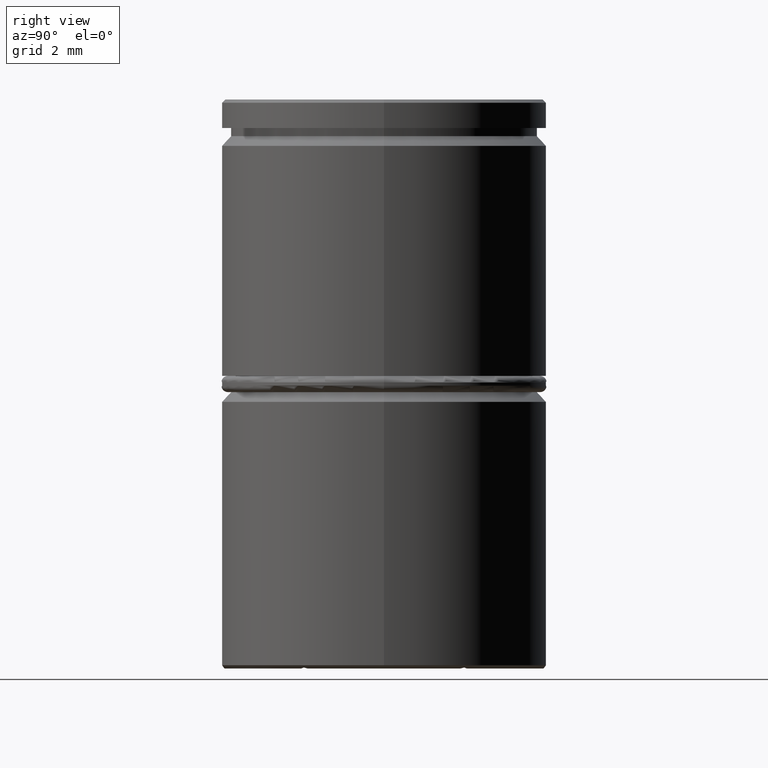
[diagram: clean part render]
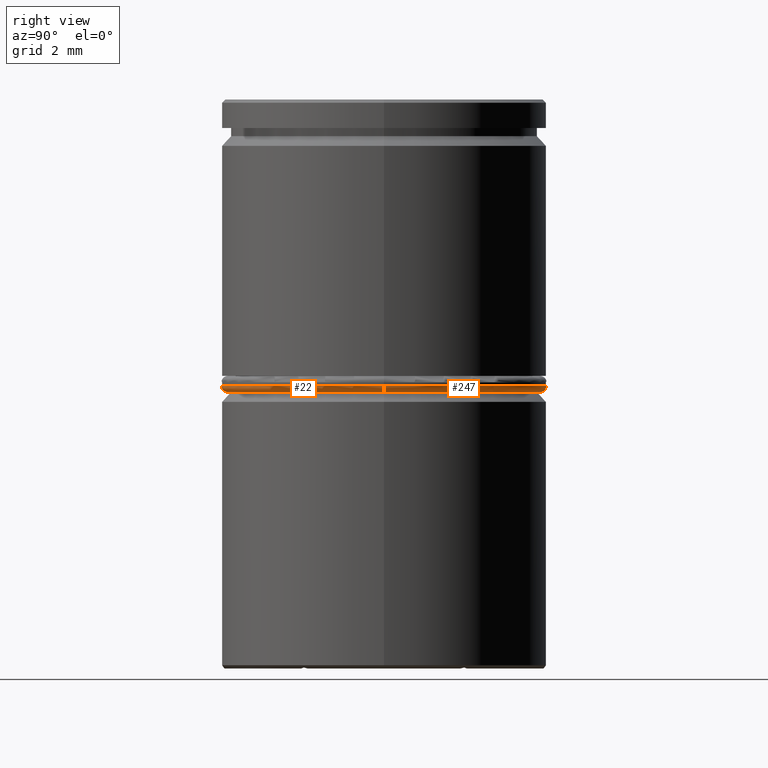
[diagram: same view with one multi-face feature highlighted, each face labeled with its STEP entity id]
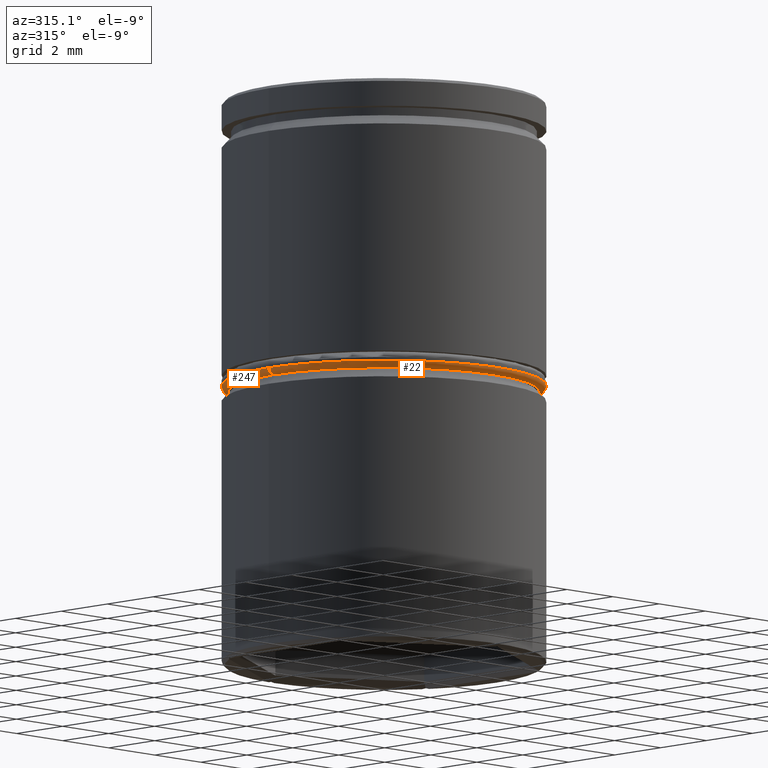
[diagram: same view with one multi-face feature highlighted, each face labeled with its STEP entity id]
A machine part, right view. The highlighted faces form ONE feature: a constant-radius fillet chain: 2 tangent blend faces with common blend radius 0.2 mm. The faces share edges in the B-rep.
A second angle (auxiliary view) of the same feature is appended — it is thin or edge-on in the first view.
Their STEP definitions:
[1] entity #22 (Torus):
#22 = ADVANCED_FACE ( 'NONE', ( #220 ), #384, .T. ) ;
#28 = CIRCLE ( 'NONE', #1023, 0.1999999999999996503 ) ;
#44 = CARTESIAN_POINT ( 'NONE',  ( 0.000000000000000000, 0.000000000000000000, -9.000000000000001776 ) ) ;
#75 = AXIS2_PLACEMENT_3D ( 'NONE', #1237, #1218, #1119 ) ;
#108 = CARTESIAN_POINT ( 'NONE',  ( 4.800000000000000711, 0.000000000000000000, -8.800000000000000711 ) ) ;
#126 = EDGE_CURVE ( 'NONE', #305, #483, #28, .T. ) ;
#220 = FACE_OUTER_BOUND ( 'NONE', #530, .T. ) ;
#297 = AXIS2_PLACEMENT_3D ( 'NONE', #329, #410, #1055 ) ;
#305 = VERTEX_POINT ( 'NONE', #1344 ) ;
#329 = CARTESIAN_POINT ( 'NONE',  ( 0.000000000000000000, 0.000000000000000000, -8.800000000000000711 ) ) ;
#356 = DIRECTION ( 'NONE',  ( -1.000000000000000000, 1.224646799147353454E-16, 0.000000000000000000 ) ) ;
#372 = VERTEX_POINT ( 'NONE', #1315 ) ;
#384 = TOROIDAL_SURFACE ( 'NONE', #297, 4.800000000000000711, 0.2000000000000000111 ) ;
#410 = DIRECTION ( 'NONE',  ( 0.000000000000000000, 0.000000000000000000, 1.000000000000000000 ) ) ;
#483 = VERTEX_POINT ( 'NONE', #746 ) ;
#516 = ORIENTED_EDGE ( 'NONE', *, *, #126, .F. ) ;
#530 = EDGE_LOOP ( 'NONE', ( #516, #1225, #729, #1022 ) ) ;
#538 = DIRECTION ( 'NONE',  ( 0.000000000000000000, 0.000000000000000000, -1.000000000000000000 ) ) ;
#600 = EDGE_CURVE ( 'NONE', #372, #928, #880, .T. ) ;
#680 = DIRECTION ( 'NONE',  ( -0.000000000000000000, -0.000000000000000000, -1.000000000000000000 ) ) ;
#729 = ORIENTED_EDGE ( 'NONE', *, *, #600, .T. ) ;
#746 = CARTESIAN_POINT ( 'NONE',  ( -5.000000000000000000, 6.123233995736766282E-16, -8.800000000000000711 ) ) ;
#759 = DIRECTION ( 'NONE',  ( 0.000000000000000000, -1.000000000000000000, 0.000000000000000000 ) ) ;
#762 = EDGE_CURVE ( 'NONE', #372, #305, #1138, .T. ) ;
#880 = CIRCLE ( 'NONE', #1254, 0.2000000000000005107 ) ;
#928 = VERTEX_POINT ( 'NONE', #1378 ) ;
#1006 = CARTESIAN_POINT ( 'NONE',  ( -4.800000000000000711, 5.878304635907295197E-16, -8.800000000000000711 ) ) ;
#1022 = ORIENTED_EDGE ( 'NONE', *, *, #1197, .F. ) ;
#1023 = AXIS2_PLACEMENT_3D ( 'NONE', #1006, #1311, #356 ) ;
#1055 = DIRECTION ( 'NONE',  ( 1.000000000000000000, 0.000000000000000000, 0.000000000000000000 ) ) ;
#1092 = CIRCLE ( 'NONE', #75, 5.000000000000000000 ) ;
#1119 = DIRECTION ( 'NONE',  ( 1.000000000000000000, 0.000000000000000000, 0.000000000000000000 ) ) ;
#1138 = CIRCLE ( 'NONE', #1346, 4.800000000000000711 ) ;
#1197 = EDGE_CURVE ( 'NONE', #483, #928, #1092, .T. ) ;
#1217 = DIRECTION ( 'NONE',  ( 1.000000000000000000, 0.000000000000000000, 0.000000000000000000 ) ) ;
#1218 = DIRECTION ( 'NONE',  ( 0.000000000000000000, 0.000000000000000000, 1.000000000000000000 ) ) ;
#1225 = ORIENTED_EDGE ( 'NONE', *, *, #762, .F. ) ;
#1237 = CARTESIAN_POINT ( 'NONE',  ( 0.000000000000000000, 0.000000000000000000, -8.800000000000000711 ) ) ;
#1254 = AXIS2_PLACEMENT_3D ( 'NONE', #108, #759, #538 ) ;
#1311 = DIRECTION ( 'NONE',  ( 1.224646799147353207E-16, 1.000000000000000000, -0.000000000000000000 ) ) ;
#1315 = CARTESIAN_POINT ( 'NONE',  ( 4.800000000000000711, 0.000000000000000000, -9.000000000000001776 ) ) ;
#1344 = CARTESIAN_POINT ( 'NONE',  ( -4.800000000000000711, 6.000769315822031726E-16, -9.000000000000001776 ) ) ;
#1346 = AXIS2_PLACEMENT_3D ( 'NONE', #44, #680, #1217 ) ;
#1378 = CARTESIAN_POINT ( 'NONE',  ( 5.000000000000000000, 0.000000000000000000, -8.800000000000000711 ) ) ;
[2] entity #247 (Torus):
#9 = AXIS2_PLACEMENT_3D ( 'NONE', #988, #467, #991 ) ;
#28 = CIRCLE ( 'NONE', #1023, 0.1999999999999996503 ) ;
#54 = AXIS2_PLACEMENT_3D ( 'NONE', #243, #1084, #1097 ) ;
#108 = CARTESIAN_POINT ( 'NONE',  ( 4.800000000000000711, 0.000000000000000000, -8.800000000000000711 ) ) ;
#126 = EDGE_CURVE ( 'NONE', #305, #483, #28, .T. ) ;
#136 = EDGE_CURVE ( 'NONE', #305, #372, #343, .T. ) ;
#158 = TOROIDAL_SURFACE ( 'NONE', #1206, 4.800000000000000711, 0.2000000000000000111 ) ;
#243 = CARTESIAN_POINT ( 'NONE',  ( 0.000000000000000000, 0.000000000000000000, -8.800000000000000711 ) ) ;
#247 = ADVANCED_FACE ( 'NONE', ( #1308 ), #158, .T. ) ;
#305 = VERTEX_POINT ( 'NONE', #1344 ) ;
#343 = CIRCLE ( 'NONE', #9, 4.800000000000000711 ) ;
#356 = DIRECTION ( 'NONE',  ( -1.000000000000000000, 1.224646799147353454E-16, 0.000000000000000000 ) ) ;
#372 = VERTEX_POINT ( 'NONE', #1315 ) ;
#424 = ORIENTED_EDGE ( 'NONE', *, *, #600, .F. ) ;
#467 = DIRECTION ( 'NONE',  ( -0.000000000000000000, -0.000000000000000000, -1.000000000000000000 ) ) ;
#483 = VERTEX_POINT ( 'NONE', #746 ) ;
#538 = DIRECTION ( 'NONE',  ( 0.000000000000000000, 0.000000000000000000, -1.000000000000000000 ) ) ;
#547 = CIRCLE ( 'NONE', #54, 5.000000000000000000 ) ;
#559 = CARTESIAN_POINT ( 'NONE',  ( 0.000000000000000000, 0.000000000000000000, -8.800000000000000711 ) ) ;
#593 = ORIENTED_EDGE ( 'NONE', *, *, #126, .T. ) ;
#600 = EDGE_CURVE ( 'NONE', #372, #928, #880, .T. ) ;
#621 = ORIENTED_EDGE ( 'NONE', *, *, #963, .F. ) ;
#746 = CARTESIAN_POINT ( 'NONE',  ( -5.000000000000000000, 6.123233995736766282E-16, -8.800000000000000711 ) ) ;
#759 = DIRECTION ( 'NONE',  ( 0.000000000000000000, -1.000000000000000000, 0.000000000000000000 ) ) ;
#880 = CIRCLE ( 'NONE', #1254, 0.2000000000000005107 ) ;
#928 = VERTEX_POINT ( 'NONE', #1378 ) ;
#963 = EDGE_CURVE ( 'NONE', #928, #483, #547, .T. ) ;
#973 = DIRECTION ( 'NONE',  ( 1.000000000000000000, 0.000000000000000000, 0.000000000000000000 ) ) ;
#988 = CARTESIAN_POINT ( 'NONE',  ( 0.000000000000000000, 0.000000000000000000, -9.000000000000001776 ) ) ;
#991 = DIRECTION ( 'NONE',  ( 1.000000000000000000, 0.000000000000000000, 0.000000000000000000 ) ) ;
#1006 = CARTESIAN_POINT ( 'NONE',  ( -4.800000000000000711, 5.878304635907295197E-16, -8.800000000000000711 ) ) ;
#1011 = EDGE_LOOP ( 'NONE', ( #1356, #593, #621, #424 ) ) ;
#1023 = AXIS2_PLACEMENT_3D ( 'NONE', #1006, #1311, #356 ) ;
#1084 = DIRECTION ( 'NONE',  ( 0.000000000000000000, 0.000000000000000000, 1.000000000000000000 ) ) ;
#1097 = DIRECTION ( 'NONE',  ( 1.000000000000000000, 0.000000000000000000, 0.000000000000000000 ) ) ;
#1174 = DIRECTION ( 'NONE',  ( 0.000000000000000000, 0.000000000000000000, 1.000000000000000000 ) ) ;
#1206 = AXIS2_PLACEMENT_3D ( 'NONE', #559, #1174, #973 ) ;
#1254 = AXIS2_PLACEMENT_3D ( 'NONE', #108, #759, #538 ) ;
#1308 = FACE_OUTER_BOUND ( 'NONE', #1011, .T. ) ;
#1311 = DIRECTION ( 'NONE',  ( 1.224646799147353207E-16, 1.000000000000000000, -0.000000000000000000 ) ) ;
#1315 = CARTESIAN_POINT ( 'NONE',  ( 4.800000000000000711, 0.000000000000000000, -9.000000000000001776 ) ) ;
#1344 = CARTESIAN_POINT ( 'NONE',  ( -4.800000000000000711, 6.000769315822031726E-16, -9.000000000000001776 ) ) ;
#1356 = ORIENTED_EDGE ( 'NONE', *, *, #136, .F. ) ;
#1378 = CARTESIAN_POINT ( 'NONE',  ( 5.000000000000000000, 0.000000000000000000, -8.800000000000000711 ) ) ;